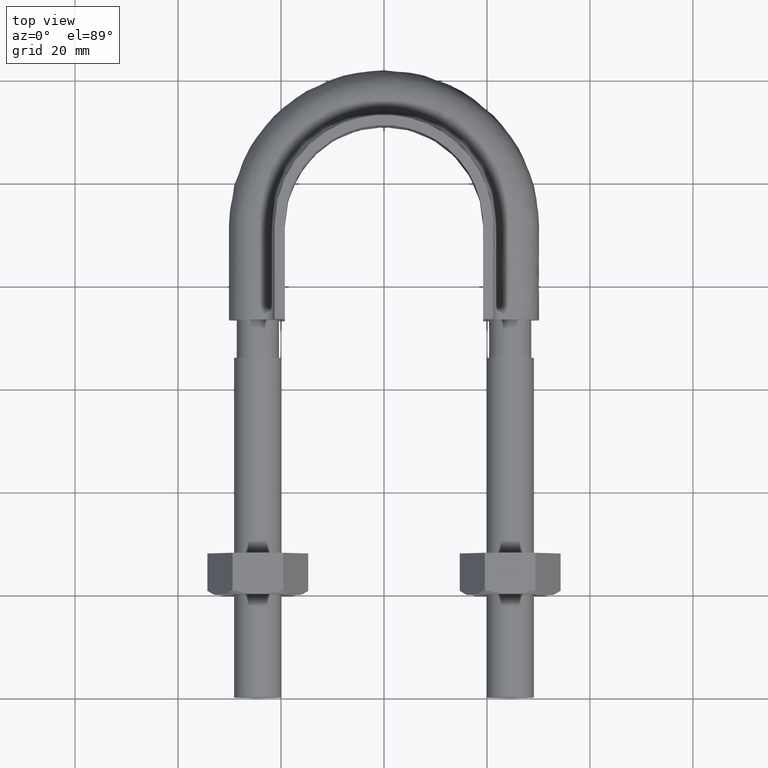
[diagram: clean part render]
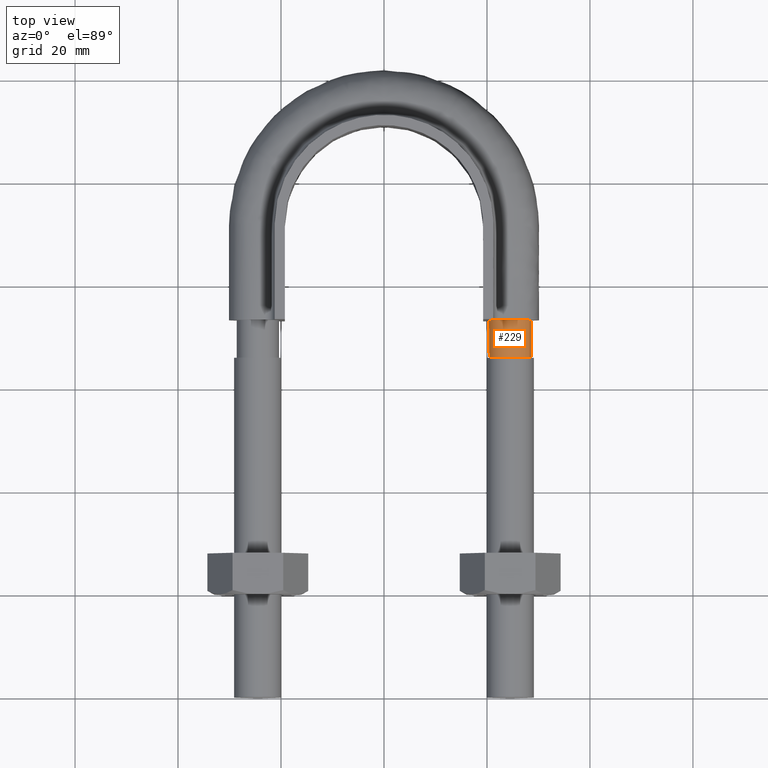
[diagram: same view with one face highlighted and labeled with its STEP entity id]
A machine part, top view. The second image highlights one B-rep face of the part: STEP entity #229.
In plain terms, the highlighted cylindrical surface (bore or boss wall) has radius 4.1 mm, axis along (0, 1, 0).
Its self-contained STEP definition (entity closure, byte-faithful):
#229 = ADVANCED_FACE( '', ( #317, #318 ), #319, .T. );
#317 = FACE_OUTER_BOUND( '', #1160, .T. );
#318 = FACE_OUTER_BOUND( '', #1161, .T. );
#319 = CYLINDRICAL_SURFACE( '', #1162, 4.10000000000000 );
#1160 = EDGE_LOOP( '', ( #1394, #1395, #1396, #1397, #1398, #1399, #1400 ) );
#1161 = EDGE_LOOP( '', ( #1401 ) );
#1162 = AXIS2_PLACEMENT_3D( '', #1402, #1403, #1404 );
#1394 = ORIENTED_EDGE( '', *, *, #1873, .T. );
#1395 = ORIENTED_EDGE( '', *, *, #1874, .T. );
#1396 = ORIENTED_EDGE( '', *, *, #1875, .T. );
#1397 = ORIENTED_EDGE( '', *, *, #1876, .T. );
#1398 = ORIENTED_EDGE( '', *, *, #1877, .T. );
#1399 = ORIENTED_EDGE( '', *, *, #1878, .T. );
#1400 = ORIENTED_EDGE( '', *, *, #1879, .T. );
#1401 = ORIENTED_EDGE( '', *, *, #1880, .T. );
#1402 = CARTESIAN_POINT( '', ( 24.5000000000000, 73.3000000000000, 1.63178796646832E-014 ) );
#1403 = DIRECTION( '', ( 2.44921270764475E-016, 1.00000000000000, 3.06151588455594E-016 ) );
#1404 = DIRECTION( '', ( 1.00000000000000, -2.44921270764475E-016, -3.74915180455534E-032 ) );
#1873 = EDGE_CURVE( '', #2037, #2035, #2046, .T. );
#1874 = EDGE_CURVE( '', #2035, #2033, #2047, .T. );
#1875 = EDGE_CURVE( '', #2033, #2032, #2048, .T. );
#1876 = EDGE_CURVE( '', #2032, #2043, #2049, .T. );
#1877 = EDGE_CURVE( '', #2043, #2041, #2050, .T. );
#1878 = EDGE_CURVE( '', #2041, #2039, #2051, .T. );
#1879 = EDGE_CURVE( '', #2039, #2037, #2052, .T. );
#1880 = EDGE_CURVE( '', #2053, #2053, #2054, .F. );
#2032 = VERTEX_POINT( '', #2429 );
#2033 = VERTEX_POINT( '', #2430 );
#2035 = VERTEX_POINT( '', #2435 );
#2037 = VERTEX_POINT( '', #2440 );
#2039 = VERTEX_POINT( '', #2445 );
#2041 = VERTEX_POINT( '', #2450 );
#2043 = VERTEX_POINT( '', #2455 );
#2046 = CIRCLE( '', #2464, 4.10000000000000 );
#2047 = CIRCLE( '', #2465, 4.10000000000000 );
#2048 = CIRCLE( '', #2466, 4.10000000000000 );
#2049 = CIRCLE( '', #2467, 4.10000000000000 );
#2050 = CIRCLE( '', #2468, 4.10000000000000 );
#2051 = CIRCLE( '', #2469, 4.10000000000000 );
#2052 = CIRCLE( '', #2470, 4.10000000000000 );
#2053 = VERTEX_POINT( '', #2471 );
#2054 = CIRCLE( '', #2472, 4.10000000000000 );
#2429 = CARTESIAN_POINT( '', ( 20.4000000000000, 73.3000000000001, 4.39925776255788E-016 ) );
#2430 = CARTESIAN_POINT( '', ( 21.9436918123791, 73.3000000000000, 3.20550907811883 ) );
#2435 = CARTESIAN_POINT( '', ( 25.4123358292210, 73.3000000000000, 3.99720443994547 ) );
#2440 = CARTESIAN_POINT( '', ( 28.1939723583999, 73.3000000000000, 1.77892333038204 ) );
#2445 = CARTESIAN_POINT( '', ( 28.1939723583998, 73.3000000000000, -1.77892333038234 ) );
#2450 = CARTESIAN_POINT( '', ( 25.4123358292208, 73.3000000000000, -3.99720443994549 ) );
#2455 = CARTESIAN_POINT( '', ( 21.9436918123792, 73.3000000000000, -3.20550907811890 ) );
#2464 = AXIS2_PLACEMENT_3D( '', #2855, #2856, #2857 );
#2465 = AXIS2_PLACEMENT_3D( '', #2858, #2859, #2860 );
#2466 = AXIS2_PLACEMENT_3D( '', #2861, #2862, #2863 );
#2467 = AXIS2_PLACEMENT_3D( '', #2864, #2865, #2866 );
#2468 = AXIS2_PLACEMENT_3D( '', #2867, #2868, #2869 );
#2469 = AXIS2_PLACEMENT_3D( '', #2870, #2871, #2872 );
#2470 = AXIS2_PLACEMENT_3D( '', #2873, #2874, #2875 );
#2471 = CARTESIAN_POINT( '', ( 24.5000000000000, 66.0000000000000, 4.10000000000001 ) );
#2472 = AXIS2_PLACEMENT_3D( '', #2876, #2877, #2878 );
#2855 = CARTESIAN_POINT( '', ( 24.5000000000000, 73.3000000000000, 1.63178796646832E-014 ) );
#2856 = DIRECTION( '', ( -2.44921270764475E-016, -1.00000000000000, -3.06151588455594E-016 ) );
#2857 = DIRECTION( '', ( 1.00000000000000, -2.44921270764475E-016, -3.74915180455534E-032 ) );
#2858 = CARTESIAN_POINT( '', ( 24.5000000000000, 73.3000000000000, 1.63178796646832E-014 ) );
#2859 = DIRECTION( '', ( -2.44921270764475E-016, -1.00000000000000, -3.06151588455594E-016 ) );
#2860 = DIRECTION( '', ( 1.00000000000000, -2.44921270764475E-016, -3.74915180455534E-032 ) );
#2861 = CARTESIAN_POINT( '', ( 24.5000000000000, 73.3000000000000, 1.63178796646832E-014 ) );
#2862 = DIRECTION( '', ( -2.44921270764475E-016, -1.00000000000000, -3.06151588455594E-016 ) );
#2863 = DIRECTION( '', ( 1.00000000000000, -2.44921270764475E-016, -3.74915180455534E-032 ) );
#2864 = CARTESIAN_POINT( '', ( 24.5000000000000, 73.3000000000000, 1.63178796646832E-014 ) );
#2865 = DIRECTION( '', ( -2.44921270764475E-016, -1.00000000000000, -3.06151588455594E-016 ) );
#2866 = DIRECTION( '', ( 1.00000000000000, -2.44921270764475E-016, -3.74915180455534E-032 ) );
#2867 = CARTESIAN_POINT( '', ( 24.5000000000000, 73.3000000000000, 1.63178796646832E-014 ) );
#2868 = DIRECTION( '', ( -2.44921270764475E-016, -1.00000000000000, -3.06151588455594E-016 ) );
#2869 = DIRECTION( '', ( 1.00000000000000, -2.44921270764475E-016, -3.74915180455534E-032 ) );
#2870 = CARTESIAN_POINT( '', ( 24.5000000000000, 73.3000000000000, 1.63178796646832E-014 ) );
#2871 = DIRECTION( '', ( -2.44921270764475E-016, -1.00000000000000, -3.06151588455594E-016 ) );
#2872 = DIRECTION( '', ( 1.00000000000000, -2.44921270764475E-016, -3.74915180455534E-032 ) );
#2873 = CARTESIAN_POINT( '', ( 24.5000000000000, 73.3000000000000, 1.63178796646832E-014 ) );
#2874 = DIRECTION( '', ( -2.44921270764475E-016, -1.00000000000000, -3.06151588455594E-016 ) );
#2875 = DIRECTION( '', ( 1.00000000000000, -2.44921270764475E-016, -3.74915180455534E-032 ) );
#2876 = CARTESIAN_POINT( '', ( 24.5000000000000, 66.0000000000000, 1.40829730689573E-014 ) );
#2877 = DIRECTION( '', ( -2.44921270764475E-016, -1.00000000000000, -3.06151588455594E-016 ) );
#2878 = DIRECTION( '', ( -3.74915180455534E-032, -3.06151588455594E-016, 1.00000000000000 ) );